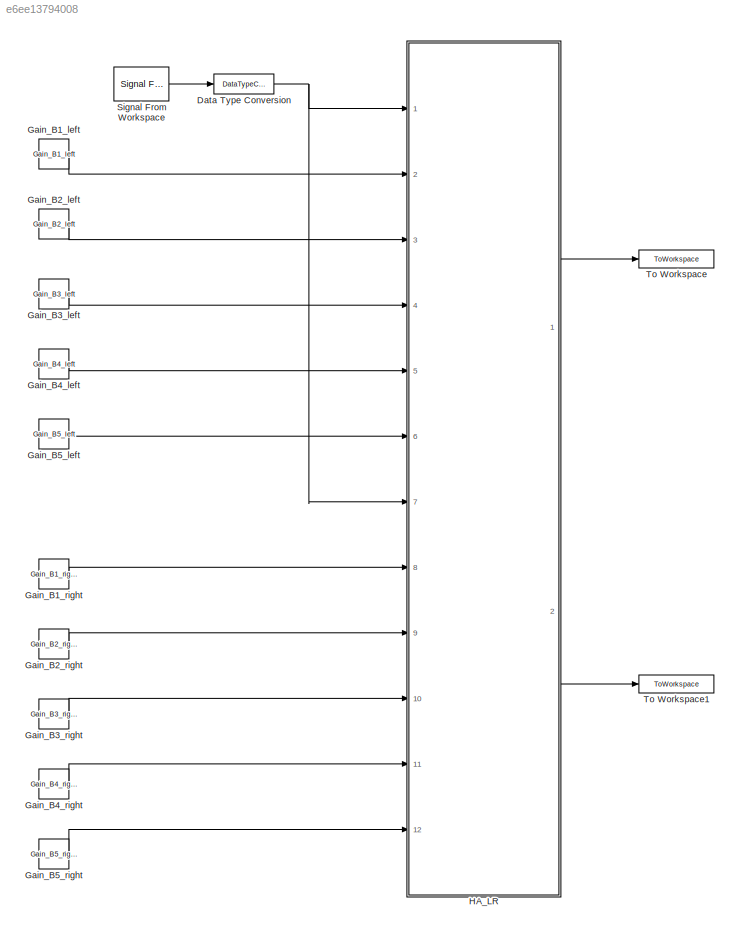
MODEL slx_e6ee13794008
KIND model
CONFIG AbsTol = auto
CONFIG EnableMultiTasking = off
CONFIG FixedStep = auto
CONFIG InitFcn = HA_sys7_init\n\n
CONFIG MaxStep = auto
CONFIG MinStep = auto
CONFIG RelTol = 1e-3
CONFIG SampleTimeConstraint = Unconstrained
CONFIG Solver = FixedStepDiscrete
CONFIG SolverName = FixedStepDiscrete
CONFIG StartTime = 0.0
CONFIG StopFcn = %figure(1)\n\n%subplot(2,1,1)\n%plot(HA_left_data_out)\n%title('Left Channel Output')\n\n%subplot(2,1,2)\n%plot(HA_right_data_out)\n%title('Right Channel Output')\n
CONFIG StopTime = stopTime
BLOCK [DataTypeConversion] Data Type Conversion
  OutDataTypeStr = fixdt(1,32,28)
  RndMeth = Floor
  SaturateOnIntegerOverflow = off
BLOCK [Constant] Gain_B1_left
  LockScale = on
  OutDataTypeStr = fixdt(1,32,16)
  SampleTime = -1
  Value = Gain_B1_left
BLOCK [Constant] Gain_B1_right
  LockScale = on
  OutDataTypeStr = fixdt(1,32,16)
  SampleTime = -1
  Value = Gain_B1_right
BLOCK [Constant] Gain_B2_left
  LockScale = on
  OutDataTypeStr = fixdt(1,32,16)
  SampleTime = -1
  Value = Gain_B2_left
BLOCK [Constant] Gain_B2_right
  LockScale = on
  OutDataTypeStr = fixdt(1,32,16)
  SampleTime = -1
  Value = Gain_B2_right
BLOCK [Constant] Gain_B3_left
  LockScale = on
  OutDataTypeStr = fixdt(1,32,16)
  SampleTime = -1
  Value = Gain_B3_left
BLOCK [Constant] Gain_B3_right
  LockScale = on
  OutDataTypeStr = fixdt(1,32,16)
  SampleTime = -1
  Value = Gain_B3_right
BLOCK [Constant] Gain_B4_left
  LockScale = on
  OutDataTypeStr = fixdt(1,32,16)
  SampleTime = -1
  Value = Gain_B4_left
BLOCK [Constant] Gain_B4_right
  LockScale = on
  OutDataTypeStr = fixdt(1,32,16)
  SampleTime = -1
  Value = Gain_B4_right
BLOCK [Constant] Gain_B5_left
  LockScale = on
  OutDataTypeStr = fixdt(1,32,16)
  SampleTime = -1
  Value = Gain_B5_left
BLOCK [Constant] Gain_B5_right
  LockScale = on
  OutDataTypeStr = fixdt(1,32,16)
  SampleTime = -1
  Value = Gain_B5_right
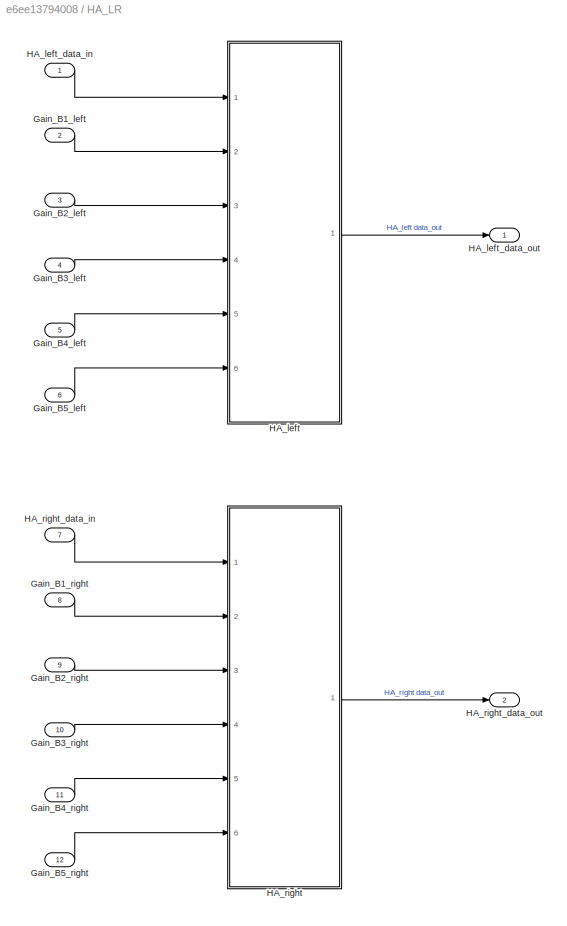
BLOCK [SubSystem] HA_LR
  Ports = [12, 2]
  RequestExecContextInheritance = off
  Variant = off
BLOCK [Inport] HA_LR/Gain_B1_left
  IconDisplay = Port number
  Port = 2
BLOCK [Inport] HA_LR/Gain_B1_right
  IconDisplay = Port number
  Port = 8
BLOCK [Inport] HA_LR/Gain_B2_left
  IconDisplay = Port number
  Port = 3
BLOCK [Inport] HA_LR/Gain_B2_right
  IconDisplay = Port number
  Port = 9
BLOCK [Inport] HA_LR/Gain_B3_left
  IconDisplay = Port number
  Port = 4
BLOCK [Inport] HA_LR/Gain_B3_right
  IconDisplay = Port number
  Port = 10
BLOCK [Inport] HA_LR/Gain_B4_left
  IconDisplay = Port number
  Port = 5
BLOCK [Inport] HA_LR/Gain_B4_right
  IconDisplay = Port number
  Port = 11
BLOCK [Inport] HA_LR/Gain_B5_left
  IconDisplay = Port number
  Port = 6
BLOCK [Inport] HA_LR/Gain_B5_right
  IconDisplay = Port number
  Port = 12
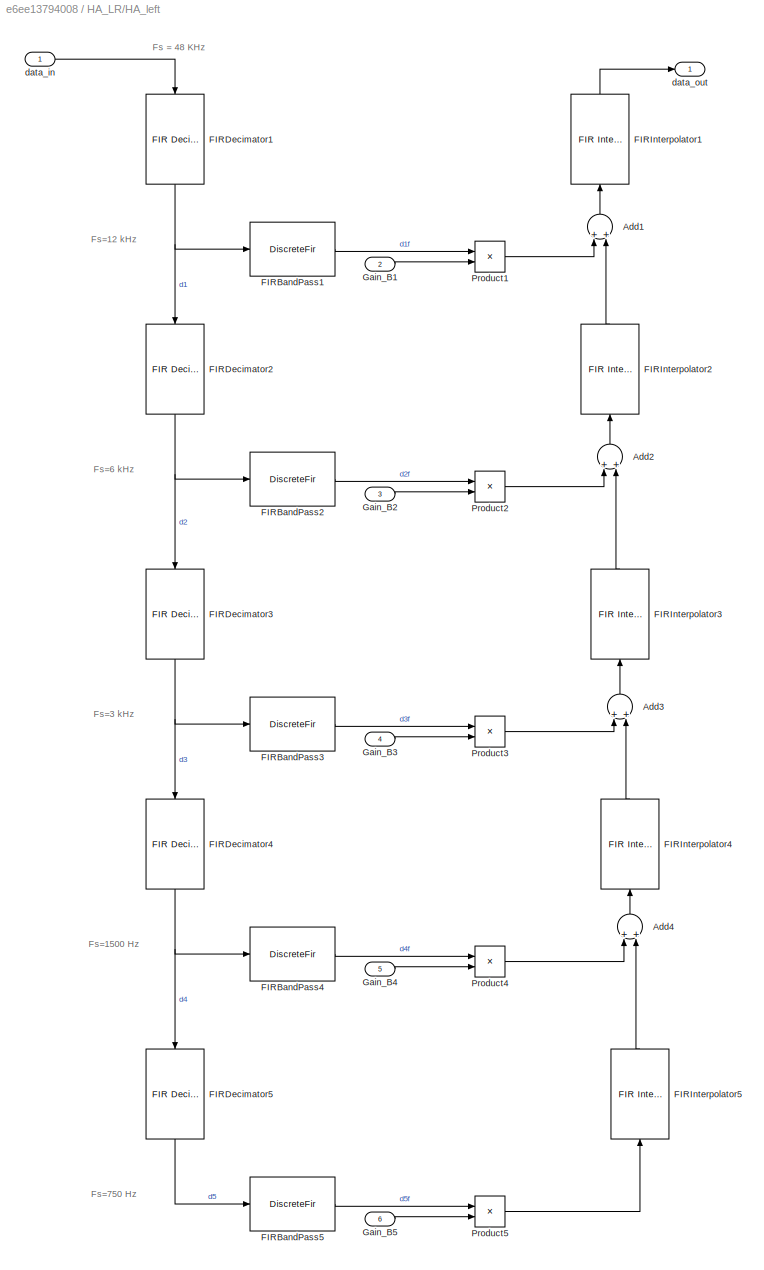
BLOCK [SubSystem] HA_LR/HA_left
  Ports = [6, 1]
  RequestExecContextInheritance = off
  Variant = off
BLOCK [Sum] HA_LR/HA_left/Add1
  InputSameDT = off
  OutDataTypeStr = Inherit: Inherit via internal rule
  Ports = [2, 1]
BLOCK [Sum] HA_LR/HA_left/Add2
  InputSameDT = off
  OutDataTypeStr = Inherit: Inherit via internal rule
  Ports = [2, 1]
BLOCK [Sum] HA_LR/HA_left/Add3
  InputSameDT = off
  OutDataTypeStr = Inherit: Inherit via internal rule
  Ports = [2, 1]
BLOCK [Sum] HA_LR/HA_left/Add4
  InputSameDT = off
  OutDataTypeStr = Inherit: Inherit via internal rule
  Ports = [2, 1]
BLOCK [DiscreteFir] HA_LR/HA_left/FIRBandPass1
  AccumDataTypeStr = Inherit: Same as product output
  Coefficients = FIRBandPass1.FIR_coefficients
  InputPortMap = u0
  OutputPortMap = o0
  Ports = [1, 1]
  ProductDataTypeStr = Inherit: Same as input
  SaturateOnIntegerOverflow = on
BLOCK [DiscreteFir] HA_LR/HA_left/FIRBandPass2
  AccumDataTypeStr = Inherit: Same as product output
  Coefficients = FIRBandPass2.FIR_coefficients
  InputPortMap = u0
  OutDataTypeStr = FIRBandPass2.numeric_type
  OutputPortMap = o0
  Ports = [1, 1]
  ProductDataTypeStr = Inherit: Same as input
  SaturateOnIntegerOverflow = on
BLOCK [DiscreteFir] HA_LR/HA_left/FIRBandPass3
  AccumDataTypeStr = Inherit: Same as product output
  Coefficients = FIRBandPass3.FIR_coefficients
  InputPortMap = u0
  OutDataTypeStr = FIRBandPass2.numeric_type
  OutputPortMap = o0
  Ports = [1, 1]
  ProductDataTypeStr = Inherit: Same as input
  SaturateOnIntegerOverflow = on
BLOCK [DiscreteFir] HA_LR/HA_left/FIRBandPass4
  AccumDataTypeStr = Inherit: Same as product output
  Coefficients = FIRBandPass4.FIR_coefficients
  InputPortMap = u0
  OutDataTypeStr = FIRBandPass2.numeric_type
  OutputPortMap = o0
  Ports = [1, 1]
  ProductDataTypeStr = Inherit: Same as input
  SaturateOnIntegerOverflow = on
BLOCK [DiscreteFir] HA_LR/HA_left/FIRBandPass5
  AccumDataTypeStr = Inherit: Same as product output
  Coefficients = FIRBandPass5.FIR_coefficients
  InputPortMap = u0
  OutDataTypeStr = FIRBandPass2.numeric_type
  OutputPortMap = o0
  Ports = [1, 1]
  ProductDataTypeStr = Inherit: Same as input
  SaturateOnIntegerOverflow = on
BLOCK [Reference] HA_LR/HA_left/FIRDecimator1  REF=dspmlti4/FIR
Decimation
  Ports = [1, 1]
  SourceBlock = dspmlti4/FIR\nDecimation
  SourceProductBaseCode = DS
  SourceProductName = DSP System Toolbox
  SourceType = FIR Decimation
  UserDataPersistent = on
BLOCK [Reference] HA_LR/HA_left/FIRDecimator2  REF=dspmlti4/FIR
Decimation
  Ports = [1, 1]
  SourceBlock = dspmlti4/FIR\nDecimation
  SourceProductBaseCode = DS
  SourceProductName = DSP System Toolbox
  SourceType = FIR Decimation
  UserDataPersistent = on
BLOCK [Reference] HA_LR/HA_left/FIRDecimator3  REF=dspmlti4/FIR
Decimation
  Ports = [1, 1]
  SourceBlock = dspmlti4/FIR\nDecimation
  SourceProductBaseCode = DS
  SourceProductName = DSP System Toolbox
  SourceType = FIR Decimation
  UserDataPersistent = on
BLOCK [Reference] HA_LR/HA_left/FIRDecimator4  REF=dspmlti4/FIR
Decimation
  Ports = [1, 1]
  SourceBlock = dspmlti4/FIR\nDecimation
  SourceProductBaseCode = DS
  SourceProductName = DSP System Toolbox
  SourceType = FIR Decimation
  UserDataPersistent = on
BLOCK [Reference] HA_LR/HA_left/FIRDecimator5  REF=dspmlti4/FIR
Decimation
  Ports = [1, 1]
  SourceBlock = dspmlti4/FIR\nDecimation
  SourceProductBaseCode = DS
  SourceProductName = DSP System Toolbox
  SourceType = FIR Decimation
  UserDataPersistent = on
BLOCK [Reference] HA_LR/HA_left/FIRInterpolator1  REF=dspmlti4/FIR
Interpolation
  Ports = [1, 1]
  SourceBlock = dspmlti4/FIR\nInterpolation
  SourceProductBaseCode = DS
  SourceProductName = DSP System Toolbox
  SourceType = FIR Interpolation
  UserDataPersistent = on
BLOCK [Reference] HA_LR/HA_left/FIRInterpolator2  REF=dspmlti4/FIR
Interpolation
  Ports = [1, 1]
  SourceBlock = dspmlti4/FIR\nInterpolation
  SourceProductBaseCode = DS
  SourceProductName = DSP System Toolbox
  SourceType = FIR Interpolation
  UserDataPersistent = on
BLOCK [Reference] HA_LR/HA_left/FIRInterpolator3  REF=dspmlti4/FIR
Interpolation
  Ports = [1, 1]
  SourceBlock = dspmlti4/FIR\nInterpolation
  SourceProductBaseCode = DS
  SourceProductName = DSP System Toolbox
  SourceType = FIR Interpolation
  UserDataPersistent = on
BLOCK [Reference] HA_LR/HA_left/FIRInterpolator4  REF=dspmlti4/FIR
Interpolation
  Ports = [1, 1]
  SourceBlock = dspmlti4/FIR\nInterpolation
  SourceProductBaseCode = DS
  SourceProductName = DSP System Toolbox
  SourceType = FIR Interpolation
  UserDataPersistent = on
BLOCK [Reference] HA_LR/HA_left/FIRInterpolator5  REF=dspmlti4/FIR
Interpolation
  Ports = [1, 1]
  SourceBlock = dspmlti4/FIR\nInterpolation
  SourceProductBaseCode = DS
  SourceProductName = DSP System Toolbox
  SourceType = FIR Interpolation
  UserDataPersistent = on
BLOCK [Inport] HA_LR/HA_left/Gain_B1
  IconDisplay = Port number
  LockScale = on
  OutDataTypeStr = fixdt(1,32,16)
  Port = 2
BLOCK [Inport] HA_LR/HA_left/Gain_B2
  IconDisplay = Port number
  LockScale = on
  OutDataTypeStr = fixdt(1,32,16)
  Port = 3
BLOCK [Inport] HA_LR/HA_left/Gain_B3
  IconDisplay = Port number
  LockScale = on
  OutDataTypeStr = fixdt(1,32,16)
  Port = 4
BLOCK [Inport] HA_LR/HA_left/Gain_B4
  IconDisplay = Port number
  LockScale = on
  OutDataTypeStr = fixdt(1,32,16)
  Port = 5
BLOCK [Inport] HA_LR/HA_left/Gain_B5
  IconDisplay = Port number
  LockScale = on
  OutDataTypeStr = fixdt(1,32,16)
  Port = 6
BLOCK [Product] HA_LR/HA_left/Product1
  InputSameDT = off
  OutDataTypeStr = fixdt(1,32,28)
  Ports = [2, 1]
  RndMeth = Floor
BLOCK [Product] HA_LR/HA_left/Product2
  InputSameDT = off
  OutDataTypeStr = fixdt(1,32,28)
  Ports = [2, 1]
  RndMeth = Floor
BLOCK [Product] HA_LR/HA_left/Product3
  InputSameDT = off
  OutDataTypeStr = fixdt(1,32,28)
  Ports = [2, 1]
  RndMeth = Floor
BLOCK [Product] HA_LR/HA_left/Product4
  InputSameDT = off
  OutDataTypeStr = fixdt(1,32,28)
  Ports = [2, 1]
  RndMeth = Floor
BLOCK [Product] HA_LR/HA_left/Product5
  InputSameDT = off
  OutDataTypeStr = fixdt(1,32,28)
  Ports = [2, 1]
  RndMeth = Floor
BLOCK [Inport] HA_LR/HA_left/data_in
  IconDisplay = Port number
BLOCK [Outport] HA_LR/HA_left/data_out
  IconDisplay = Port number
BLOCK [Inport] HA_LR/HA_left_data_in
  IconDisplay = Port number
BLOCK [Outport] HA_LR/HA_left_data_out
  IconDisplay = Port number
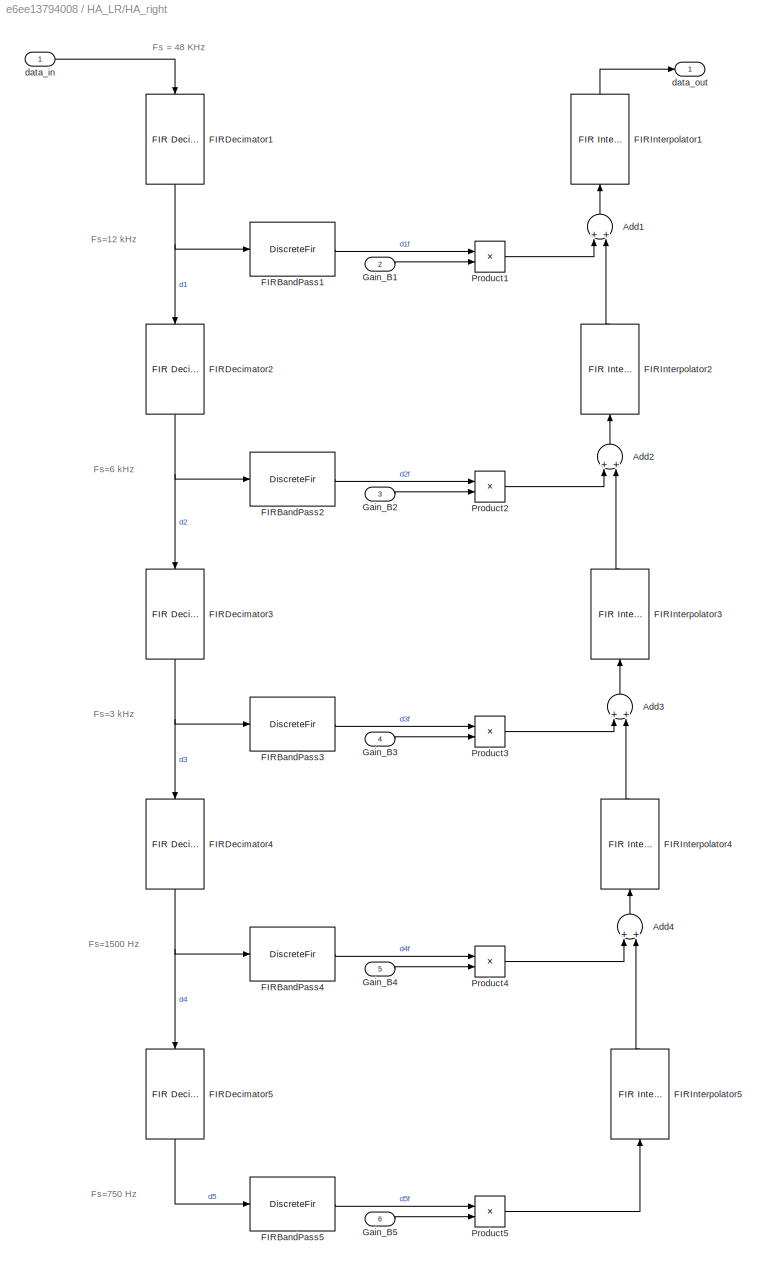
BLOCK [SubSystem] HA_LR/HA_right
  Ports = [6, 1]
  RequestExecContextInheritance = off
  Variant = off
BLOCK [Sum] HA_LR/HA_right/Add1
  InputSameDT = off
  OutDataTypeStr = Inherit: Inherit via internal rule
  Ports = [2, 1]
BLOCK [Sum] HA_LR/HA_right/Add2
  InputSameDT = off
  OutDataTypeStr = Inherit: Inherit via internal rule
  Ports = [2, 1]
BLOCK [Sum] HA_LR/HA_right/Add3
  InputSameDT = off
  OutDataTypeStr = Inherit: Inherit via internal rule
  Ports = [2, 1]
BLOCK [Sum] HA_LR/HA_right/Add4
  InputSameDT = off
  OutDataTypeStr = Inherit: Inherit via internal rule
  Ports = [2, 1]
BLOCK [DiscreteFir] HA_LR/HA_right/FIRBandPass1
  AccumDataTypeStr = Inherit: Same as product output
  Coefficients = FIRBandPass1.FIR_coefficients
  InputPortMap = u0
  OutputPortMap = o0
  Ports = [1, 1]
  ProductDataTypeStr = Inherit: Same as input
  SaturateOnIntegerOverflow = on
BLOCK [DiscreteFir] HA_LR/HA_right/FIRBandPass2
  AccumDataTypeStr = Inherit: Same as product output
  Coefficients = FIRBandPass2.FIR_coefficients
  InputPortMap = u0
  OutDataTypeStr = FIRBandPass2.numeric_type
  OutputPortMap = o0
  Ports = [1, 1]
  ProductDataTypeStr = Inherit: Same as input
  SaturateOnIntegerOverflow = on
BLOCK [DiscreteFir] HA_LR/HA_right/FIRBandPass3
  AccumDataTypeStr = Inherit: Same as product output
  Coefficients = FIRBandPass3.FIR_coefficients
  InputPortMap = u0
  OutDataTypeStr = FIRBandPass2.numeric_type
  OutputPortMap = o0
  Ports = [1, 1]
  ProductDataTypeStr = Inherit: Same as input
  SaturateOnIntegerOverflow = on
BLOCK [DiscreteFir] HA_LR/HA_right/FIRBandPass4
  AccumDataTypeStr = Inherit: Same as product output
  Coefficients = FIRBandPass4.FIR_coefficients
  InputPortMap = u0
  OutDataTypeStr = FIRBandPass2.numeric_type
  OutputPortMap = o0
  Ports = [1, 1]
  ProductDataTypeStr = Inherit: Same as input
  SaturateOnIntegerOverflow = on
BLOCK [DiscreteFir] HA_LR/HA_right/FIRBandPass5
  AccumDataTypeStr = Inherit: Same as product output
  Coefficients = FIRBandPass5.FIR_coefficients
  InputPortMap = u0
  OutDataTypeStr = FIRBandPass2.numeric_type
  OutputPortMap = o0
  Ports = [1, 1]
  ProductDataTypeStr = Inherit: Same as input
  SaturateOnIntegerOverflow = on
BLOCK [Reference] HA_LR/HA_right/FIRDecimator1  REF=dspmlti4/FIR
Decimation
  Ports = [1, 1]
  SourceBlock = dspmlti4/FIR\nDecimation
  SourceProductBaseCode = DS
  SourceProductName = DSP System Toolbox
  SourceType = FIR Decimation
  UserDataPersistent = on
BLOCK [Reference] HA_LR/HA_right/FIRDecimator2  REF=dspmlti4/FIR
Decimation
  Ports = [1, 1]
  SourceBlock = dspmlti4/FIR\nDecimation
  SourceProductBaseCode = DS
  SourceProductName = DSP System Toolbox
  SourceType = FIR Decimation
  UserDataPersistent = on
BLOCK [Reference] HA_LR/HA_right/FIRDecimator3  REF=dspmlti4/FIR
Decimation
  Ports = [1, 1]
  SourceBlock = dspmlti4/FIR\nDecimation
  SourceProductBaseCode = DS
  SourceProductName = DSP System Toolbox
  SourceType = FIR Decimation
  UserDataPersistent = on
BLOCK [Reference] HA_LR/HA_right/FIRDecimator4  REF=dspmlti4/FIR
Decimation
  Ports = [1, 1]
  SourceBlock = dspmlti4/FIR\nDecimation
  SourceProductBaseCode = DS
  SourceProductName = DSP System Toolbox
  SourceType = FIR Decimation
  UserDataPersistent = on
BLOCK [Reference] HA_LR/HA_right/FIRDecimator5  REF=dspmlti4/FIR
Decimation
  Ports = [1, 1]
  SourceBlock = dspmlti4/FIR\nDecimation
  SourceProductBaseCode = DS
  SourceProductName = DSP System Toolbox
  SourceType = FIR Decimation
  UserDataPersistent = on
BLOCK [Reference] HA_LR/HA_right/FIRInterpolator1  REF=dspmlti4/FIR
Interpolation
  Ports = [1, 1]
  SourceBlock = dspmlti4/FIR\nInterpolation
  SourceProductBaseCode = DS
  SourceProductName = DSP System Toolbox
  SourceType = FIR Interpolation
  UserDataPersistent = on
BLOCK [Reference] HA_LR/HA_right/FIRInterpolator2  REF=dspmlti4/FIR
Interpolation
  Ports = [1, 1]
  SourceBlock = dspmlti4/FIR\nInterpolation
  SourceProductBaseCode = DS
  SourceProductName = DSP System Toolbox
  SourceType = FIR Interpolation
  UserDataPersistent = on
BLOCK [Reference] HA_LR/HA_right/FIRInterpolator3  REF=dspmlti4/FIR
Interpolation
  Ports = [1, 1]
  SourceBlock = dspmlti4/FIR\nInterpolation
  SourceProductBaseCode = DS
  SourceProductName = DSP System Toolbox
  SourceType = FIR Interpolation
  UserDataPersistent = on
BLOCK [Reference] HA_LR/HA_right/FIRInterpolator4  REF=dspmlti4/FIR
Interpolation
  Ports = [1, 1]
  SourceBlock = dspmlti4/FIR\nInterpolation
  SourceProductBaseCode = DS
  SourceProductName = DSP System Toolbox
  SourceType = FIR Interpolation
  UserDataPersistent = on
BLOCK [Reference] HA_LR/HA_right/FIRInterpolator5  REF=dspmlti4/FIR
Interpolation
  Ports = [1, 1]
  SourceBlock = dspmlti4/FIR\nInterpolation
  SourceProductBaseCode = DS
  SourceProductName = DSP System Toolbox
  SourceType = FIR Interpolation
  UserDataPersistent = on
BLOCK [Inport] HA_LR/HA_right/Gain_B1
  IconDisplay = Port number
  LockScale = on
  OutDataTypeStr = fixdt(1,32,16)
  Port = 2
BLOCK [Inport] HA_LR/HA_right/Gain_B2
  IconDisplay = Port number
  LockScale = on
  OutDataTypeStr = fixdt(1,32,16)
  Port = 3
BLOCK [Inport] HA_LR/HA_right/Gain_B3
  IconDisplay = Port number
  LockScale = on
  OutDataTypeStr = fixdt(1,32,16)
  Port = 4
BLOCK [Inport] HA_LR/HA_right/Gain_B4
  IconDisplay = Port number
  LockScale = on
  OutDataTypeStr = fixdt(1,32,16)
  Port = 5
BLOCK [Inport] HA_LR/HA_right/Gain_B5
  IconDisplay = Port number
  LockScale = on
  OutDataTypeStr = fixdt(1,32,16)
  Port = 6
BLOCK [Product] HA_LR/HA_right/Product1
  InputSameDT = off
  OutDataTypeStr = fixdt(1,32,28)
  Ports = [2, 1]
  RndMeth = Floor
BLOCK [Product] HA_LR/HA_right/Product2
  InputSameDT = off
  OutDataTypeStr = fixdt(1,32,28)
  Ports = [2, 1]
  RndMeth = Floor
BLOCK [Product] HA_LR/HA_right/Product3
  InputSameDT = off
  OutDataTypeStr = fixdt(1,32,28)
  Ports = [2, 1]
  RndMeth = Floor
BLOCK [Product] HA_LR/HA_right/Product4
  InputSameDT = off
  OutDataTypeStr = fixdt(1,32,28)
  Ports = [2, 1]
  RndMeth = Floor
BLOCK [Product] HA_LR/HA_right/Product5
  InputSameDT = off
  OutDataTypeStr = fixdt(1,32,28)
  Ports = [2, 1]
  RndMeth = Floor
BLOCK [Inport] HA_LR/HA_right/data_in
  IconDisplay = Port number
BLOCK [Outport] HA_LR/HA_right/data_out
  IconDisplay = Port number
BLOCK [Inport] HA_LR/HA_right_data_in
  IconDisplay = Port number
  Port = 7
BLOCK [Outport] HA_LR/HA_right_data_out
  IconDisplay = Port number
  Port = 2
BLOCK [Reference] Signal From Workspace  REF=dspsrcs4/Signal From
Workspace
  Ports = [0, 1]
  SourceBlock = dspsrcs4/Signal From\nWorkspace
  SourceProductBaseCode = DS
  SourceProductName = DSP System Toolbox
  SourceType = Signal From Workspace
BLOCK [ToWorkspace] To Workspace
  FixptAsFi = on
  MaxDataPoints = inf
  Ports = [1]
  SampleTime = -1
  Save2DSignal = 2-D array (concatenate along first dimension)
  VariableName = HA_left_data_out
BLOCK [ToWorkspace] To Workspace1
  FixptAsFi = on
  MaxDataPoints = inf
  Ports = [1]
  SampleTime = -1
  Save2DSignal = 2-D array (concatenate along first dimension)
  VariableName = HA_right_data_out
ANNOTATION HA_LR/HA_left: Fs = 48 KHz
ANNOTATION HA_LR/HA_left: Fs=12 kHz
ANNOTATION HA_LR/HA_left: Fs=1500 Hz
ANNOTATION HA_LR/HA_left: Fs=3 kHz
ANNOTATION HA_LR/HA_left: Fs=6 kHz
ANNOTATION HA_LR/HA_left: Fs=750 Hz
ANNOTATION HA_LR/HA_right: Fs = 48 KHz
ANNOTATION HA_LR/HA_right: Fs=12 kHz
ANNOTATION HA_LR/HA_right: Fs=1500 Hz
ANNOTATION HA_LR/HA_right: Fs=3 kHz
ANNOTATION HA_LR/HA_right: Fs=6 kHz
ANNOTATION HA_LR/HA_right: Fs=750 Hz
NET Data Type Conversion:1 -> HA_LR:1, HA_LR:7
LINE Gain_B1_left:1 -> HA_LR:2
LINE Gain_B1_right:1 -> HA_LR:8
LINE Gain_B2_left:1 -> HA_LR:3
LINE Gain_B2_right:1 -> HA_LR:9
LINE Gain_B3_left:1 -> HA_LR:4
LINE Gain_B3_right:1 -> HA_LR:10
LINE Gain_B4_left:1 -> HA_LR:5
LINE Gain_B4_right:1 -> HA_LR:11
LINE Gain_B5_left:1 -> HA_LR:6
LINE Gain_B5_right:1 -> HA_LR:12
LINE HA_LR/Gain_B1_left:1 -> HA_LR/HA_left:2
LINE HA_LR/Gain_B1_right:1 -> HA_LR/HA_right:2
LINE HA_LR/Gain_B2_left:1 -> HA_LR/HA_left:3
LINE HA_LR/Gain_B2_right:1 -> HA_LR/HA_right:3
LINE HA_LR/Gain_B3_left:1 -> HA_LR/HA_left:4
LINE HA_LR/Gain_B3_right:1 -> HA_LR/HA_right:4
LINE HA_LR/Gain_B4_left:1 -> HA_LR/HA_left:5
LINE HA_LR/Gain_B4_right:1 -> HA_LR/HA_right:5
LINE HA_LR/Gain_B5_left:1 -> HA_LR/HA_left:6
LINE HA_LR/Gain_B5_right:1 -> HA_LR/HA_right:6
LINE HA_LR/HA_left/Add1:1 -> HA_LR/HA_left/FIRInterpolator1:1
LINE HA_LR/HA_left/Add2:1 -> HA_LR/HA_left/FIRInterpolator2:1
LINE HA_LR/HA_left/Add3:1 -> HA_LR/HA_left/FIRInterpolator3:1
LINE HA_LR/HA_left/Add4:1 -> HA_LR/HA_left/FIRInterpolator4:1
LINE HA_LR/HA_left/FIRBandPass1:1 -> HA_LR/HA_left/Product1:1
LINE HA_LR/HA_left/FIRBandPass2:1 -> HA_LR/HA_left/Product2:1
LINE HA_LR/HA_left/FIRBandPass3:1 -> HA_LR/HA_left/Product3:1
LINE HA_LR/HA_left/FIRBandPass4:1 -> HA_LR/HA_left/Product4:1
LINE HA_LR/HA_left/FIRBandPass5:1 -> HA_LR/HA_left/Product5:1
NET HA_LR/HA_left/FIRDecimator1:1 -> HA_LR/HA_left/FIRBandPass1:1, HA_LR/HA_left/FIRDecimator2:1
NET HA_LR/HA_left/FIRDecimator2:1 -> HA_LR/HA_left/FIRBandPass2:1, HA_LR/HA_left/FIRDecimator3:1
NET HA_LR/HA_left/FIRDecimator3:1 -> HA_LR/HA_left/FIRBandPass3:1, HA_LR/HA_left/FIRDecimator4:1
NET HA_LR/HA_left/FIRDecimator4:1 -> HA_LR/HA_left/FIRBandPass4:1, HA_LR/HA_left/FIRDecimator5:1
LINE HA_LR/HA_left/FIRDecimator5:1 -> HA_LR/HA_left/FIRBandPass5:1
LINE HA_LR/HA_left/FIRInterpolator1:1 -> HA_LR/HA_left/data_out:1
LINE HA_LR/HA_left/FIRInterpolator2:1 -> HA_LR/HA_left/Add1:2
LINE HA_LR/HA_left/FIRInterpolator3:1 -> HA_LR/HA_left/Add2:2
LINE HA_LR/HA_left/FIRInterpolator4:1 -> HA_LR/HA_left/Add3:2
LINE HA_LR/HA_left/FIRInterpolator5:1 -> HA_LR/HA_left/Add4:2
LINE HA_LR/HA_left/Gain_B1:1 -> HA_LR/HA_left/Product1:2
LINE HA_LR/HA_left/Gain_B2:1 -> HA_LR/HA_left/Product2:2
LINE HA_LR/HA_left/Gain_B3:1 -> HA_LR/HA_left/Product3:2
LINE HA_LR/HA_left/Gain_B4:1 -> HA_LR/HA_left/Product4:2
LINE HA_LR/HA_left/Gain_B5:1 -> HA_LR/HA_left/Product5:2
LINE HA_LR/HA_left/Product1:1 -> HA_LR/HA_left/Add1:1
LINE HA_LR/HA_left/Product2:1 -> HA_LR/HA_left/Add2:1
LINE HA_LR/HA_left/Product3:1 -> HA_LR/HA_left/Add3:1
LINE HA_LR/HA_left/Product4:1 -> HA_LR/HA_left/Add4:1
LINE HA_LR/HA_left/Product5:1 -> HA_LR/HA_left/FIRInterpolator5:1
LINE HA_LR/HA_left/data_in:1 -> HA_LR/HA_left/FIRDecimator1:1
LINE HA_LR/HA_left:1 -> HA_LR/HA_left_data_out:1
LINE HA_LR/HA_left_data_in:1 -> HA_LR/HA_left:1
LINE HA_LR/HA_right/Add1:1 -> HA_LR/HA_right/FIRInterpolator1:1
LINE HA_LR/HA_right/Add2:1 -> HA_LR/HA_right/FIRInterpolator2:1
LINE HA_LR/HA_right/Add3:1 -> HA_LR/HA_right/FIRInterpolator3:1
LINE HA_LR/HA_right/Add4:1 -> HA_LR/HA_right/FIRInterpolator4:1
LINE HA_LR/HA_right/FIRBandPass1:1 -> HA_LR/HA_right/Product1:1
LINE HA_LR/HA_right/FIRBandPass2:1 -> HA_LR/HA_right/Product2:1
LINE HA_LR/HA_right/FIRBandPass3:1 -> HA_LR/HA_right/Product3:1
LINE HA_LR/HA_right/FIRBandPass4:1 -> HA_LR/HA_right/Product4:1
LINE HA_LR/HA_right/FIRBandPass5:1 -> HA_LR/HA_right/Product5:1
NET HA_LR/HA_right/FIRDecimator1:1 -> HA_LR/HA_right/FIRBandPass1:1, HA_LR/HA_right/FIRDecimator2:1
NET HA_LR/HA_right/FIRDecimator2:1 -> HA_LR/HA_right/FIRBandPass2:1, HA_LR/HA_right/FIRDecimator3:1
NET HA_LR/HA_right/FIRDecimator3:1 -> HA_LR/HA_right/FIRBandPass3:1, HA_LR/HA_right/FIRDecimator4:1
NET HA_LR/HA_right/FIRDecimator4:1 -> HA_LR/HA_right/FIRBandPass4:1, HA_LR/HA_right/FIRDecimator5:1
LINE HA_LR/HA_right/FIRDecimator5:1 -> HA_LR/HA_right/FIRBandPass5:1
LINE HA_LR/HA_right/FIRInterpolator1:1 -> HA_LR/HA_right/data_out:1
LINE HA_LR/HA_right/FIRInterpolator2:1 -> HA_LR/HA_right/Add1:2
LINE HA_LR/HA_right/FIRInterpolator3:1 -> HA_LR/HA_right/Add2:2
LINE HA_LR/HA_right/FIRInterpolator4:1 -> HA_LR/HA_right/Add3:2
LINE HA_LR/HA_right/FIRInterpolator5:1 -> HA_LR/HA_right/Add4:2
LINE HA_LR/HA_right/Gain_B1:1 -> HA_LR/HA_right/Product1:2
LINE HA_LR/HA_right/Gain_B2:1 -> HA_LR/HA_right/Product2:2
LINE HA_LR/HA_right/Gain_B3:1 -> HA_LR/HA_right/Product3:2
LINE HA_LR/HA_right/Gain_B4:1 -> HA_LR/HA_right/Product4:2
LINE HA_LR/HA_right/Gain_B5:1 -> HA_LR/HA_right/Product5:2
LINE HA_LR/HA_right/Product1:1 -> HA_LR/HA_right/Add1:1
LINE HA_LR/HA_right/Product2:1 -> HA_LR/HA_right/Add2:1
LINE HA_LR/HA_right/Product3:1 -> HA_LR/HA_right/Add3:1
LINE HA_LR/HA_right/Product4:1 -> HA_LR/HA_right/Add4:1
LINE HA_LR/HA_right/Product5:1 -> HA_LR/HA_right/FIRInterpolator5:1
LINE HA_LR/HA_right/data_in:1 -> HA_LR/HA_right/FIRDecimator1:1
LINE HA_LR/HA_right:1 -> HA_LR/HA_right_data_out:1
LINE HA_LR/HA_right_data_in:1 -> HA_LR/HA_right:1
LINE HA_LR:1 -> To Workspace:1
LINE HA_LR:2 -> To Workspace1:1
LINE Signal From Workspace:1 -> Data Type Conversion:1
note: NET lines group one-source signal fan-out (src -> all destinations, sorted); 1:1 wires keep LINE
